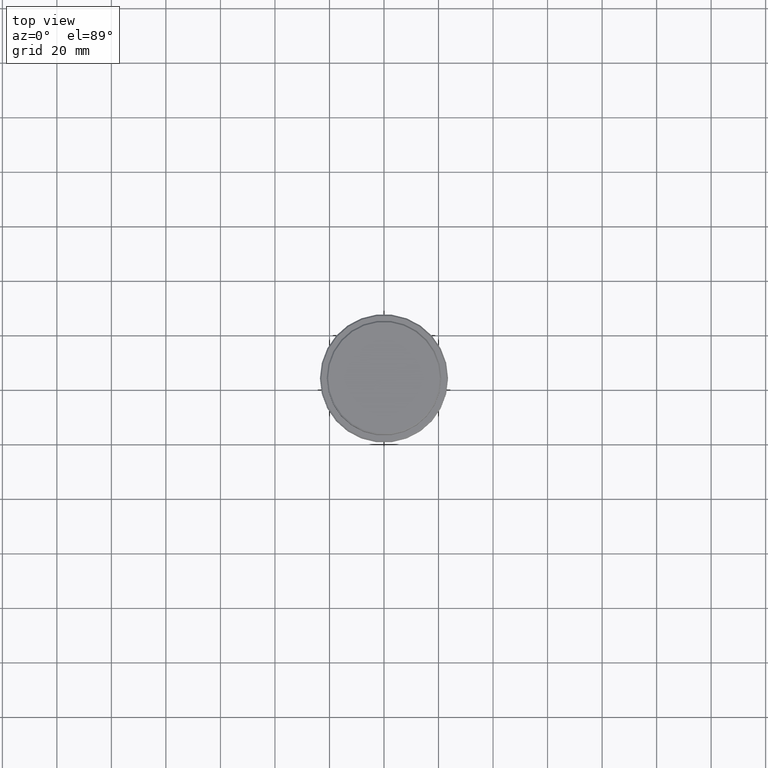
[diagram: clean part render]
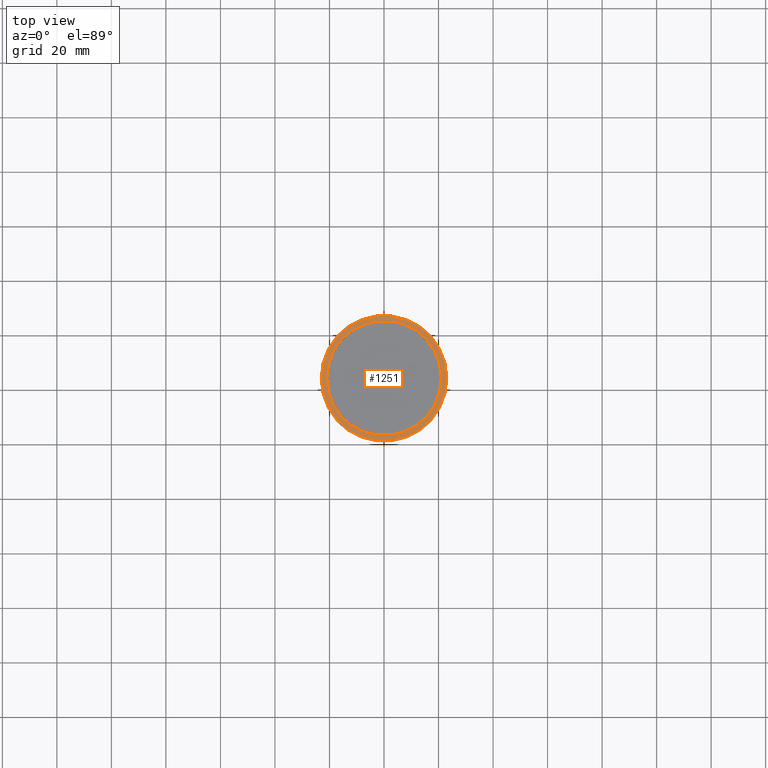
[diagram: same view with one face highlighted and labeled with its STEP entity id]
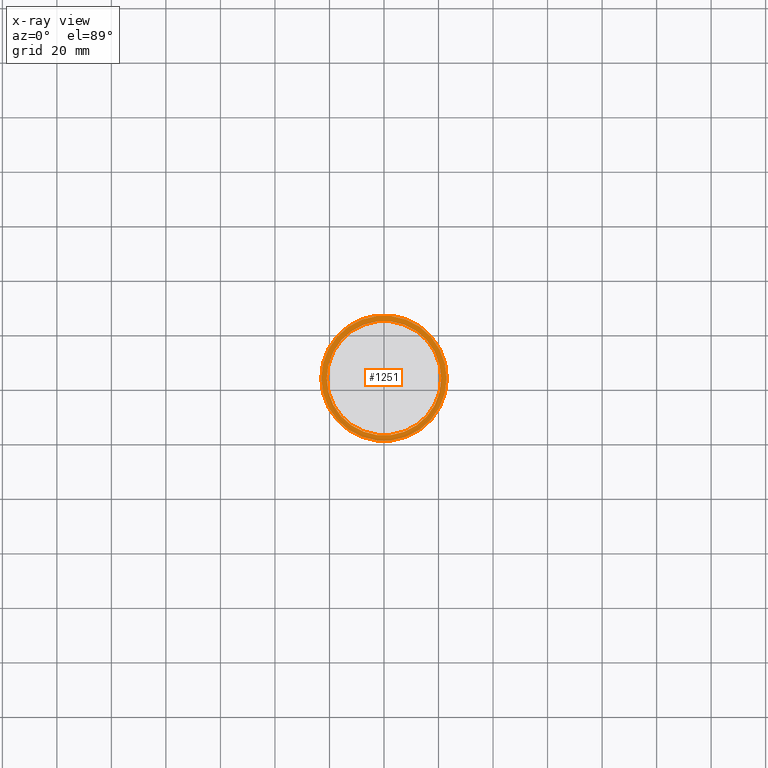
[diagram: x-ray of the same camera — body ghosted, the highlighted face saturated]
A machine part, top view. The second image highlights one B-rep face of the part: STEP entity #1251.
The next image is the same camera in x-ray: the body ghosted, the highlighted face saturated — about 0% of this face is hidden behind the body in this view.
In plain terms, the highlighted planar face has unit normal (0, -0, 1).
Its self-contained STEP definition (entity closure, byte-faithful):
#15 = DIRECTION ( 'NONE',  ( -0.000000000000000000, -0.000000000000000000, 1.000000000000000000 ) ) ;
#67 = CARTESIAN_POINT ( 'NONE',  ( -22.99999999999999645, 0.000000000000000000, -9.000000000000000000 ) ) ;
#70 = CARTESIAN_POINT ( 'NONE',  ( 0.000000000000000000, 0.000000000000000000, -9.000000000000000000 ) ) ;
#136 = AXIS2_PLACEMENT_3D ( 'NONE', #70, #399, #937 ) ;
#166 = ORIENTED_EDGE ( 'NONE', *, *, #1183, .T. ) ;
#189 = CARTESIAN_POINT ( 'NONE',  ( 0.000000000000000000, 0.000000000000000000, -9.000000000000000000 ) ) ;
#198 = AXIS2_PLACEMENT_3D ( 'NONE', #821, #1060, #1184 ) ;
#210 = DIRECTION ( 'NONE',  ( 1.000000000000000000, 0.000000000000000000, 0.000000000000000000 ) ) ;
#313 = CIRCLE ( 'NONE', #575, 22.99999999999999645 ) ;
#314 = DIRECTION ( 'NONE',  ( 1.000000000000000000, 0.000000000000000000, 0.000000000000000000 ) ) ;
#343 = VERTEX_POINT ( 'NONE', #67 ) ;
#362 = ORIENTED_EDGE ( 'NONE', *, *, #735, .T. ) ;
#382 = CIRCLE ( 'NONE', #198, 20.99999999999999289 ) ;
#390 = ORIENTED_EDGE ( 'NONE', *, *, #482, .T. ) ;
#399 = DIRECTION ( 'NONE',  ( 0.000000000000000000, 0.000000000000000000, -1.000000000000000000 ) ) ;
#482 = EDGE_CURVE ( 'NONE', #949, #343, #548, .T. ) ;
#527 = CARTESIAN_POINT ( 'NONE',  ( 0.000000000000000000, 20.49999999999999645, -9.000000000000000000 ) ) ;
#548 = CIRCLE ( 'NONE', #794, 22.99999999999999645 ) ;
#558 = DIRECTION ( 'NONE',  ( -0.000000000000000000, -0.000000000000000000, 1.000000000000000000 ) ) ;
#575 = AXIS2_PLACEMENT_3D ( 'NONE', #189, #558, #1307 ) ;
#682 = EDGE_LOOP ( 'NONE', ( #166, #390 ) ) ;
#708 = CIRCLE ( 'NONE', #136, 20.99999999999999289 ) ;
#735 = EDGE_CURVE ( 'NONE', #1350, #1296, #382, .T. ) ;
#754 = CARTESIAN_POINT ( 'NONE',  ( 22.99999999999999645, 2.847303808017596139E-15, -9.000000000000000000 ) ) ;
#779 = CARTESIAN_POINT ( 'NONE',  ( 0.000000000000000000, 0.000000000000000000, -9.000000000000000000 ) ) ;
#787 = CARTESIAN_POINT ( 'NONE',  ( 20.99999999999999289, 0.000000000000000000, -9.000000000000000000 ) ) ;
#791 = ORIENTED_EDGE ( 'NONE', *, *, #1399, .T. ) ;
#794 = AXIS2_PLACEMENT_3D ( 'NONE', #779, #15, #210 ) ;
#821 = CARTESIAN_POINT ( 'NONE',  ( 0.000000000000000000, 0.000000000000000000, -9.000000000000000000 ) ) ;
#937 = DIRECTION ( 'NONE',  ( 1.000000000000000000, 0.000000000000000000, 0.000000000000000000 ) ) ;
#942 = AXIS2_PLACEMENT_3D ( 'NONE', #527, #1299, #314 ) ;
#949 = VERTEX_POINT ( 'NONE', #754 ) ;
#1060 = DIRECTION ( 'NONE',  ( 0.000000000000000000, 0.000000000000000000, -1.000000000000000000 ) ) ;
#1139 = EDGE_LOOP ( 'NONE', ( #362, #791 ) ) ;
#1183 = EDGE_CURVE ( 'NONE', #343, #949, #313, .T. ) ;
#1184 = DIRECTION ( 'NONE',  ( 1.000000000000000000, 0.000000000000000000, 0.000000000000000000 ) ) ;
#1211 = FACE_OUTER_BOUND ( 'NONE', #682, .T. ) ;
#1251 = ADVANCED_FACE ( 'NONE', ( #1211, #1414 ), #1319, .T. ) ;
#1296 = VERTEX_POINT ( 'NONE', #1335 ) ;
#1299 = DIRECTION ( 'NONE',  ( 0.000000000000000000, -0.000000000000000000, 1.000000000000000000 ) ) ;
#1307 = DIRECTION ( 'NONE',  ( 1.000000000000000000, 0.000000000000000000, 0.000000000000000000 ) ) ;
#1319 = PLANE ( 'NONE',  #942 ) ;
#1335 = CARTESIAN_POINT ( 'NONE',  ( -20.99999999999999289, 2.571758278209440872E-15, -9.000000000000000000 ) ) ;
#1350 = VERTEX_POINT ( 'NONE', #787 ) ;
#1399 = EDGE_CURVE ( 'NONE', #1296, #1350, #708, .T. ) ;
#1414 = FACE_BOUND ( 'NONE', #1139, .T. ) ;